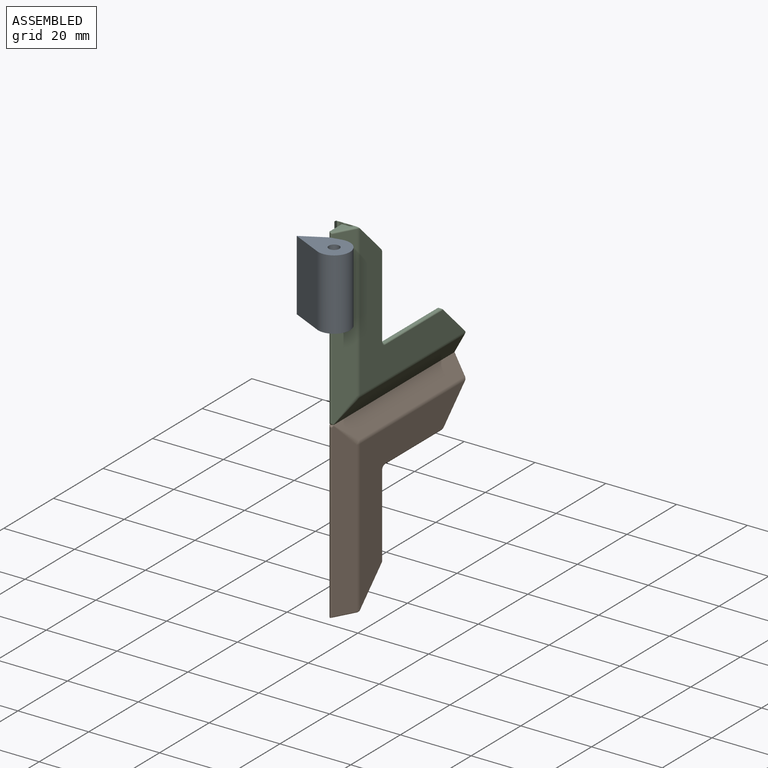
[diagram: assembled view]
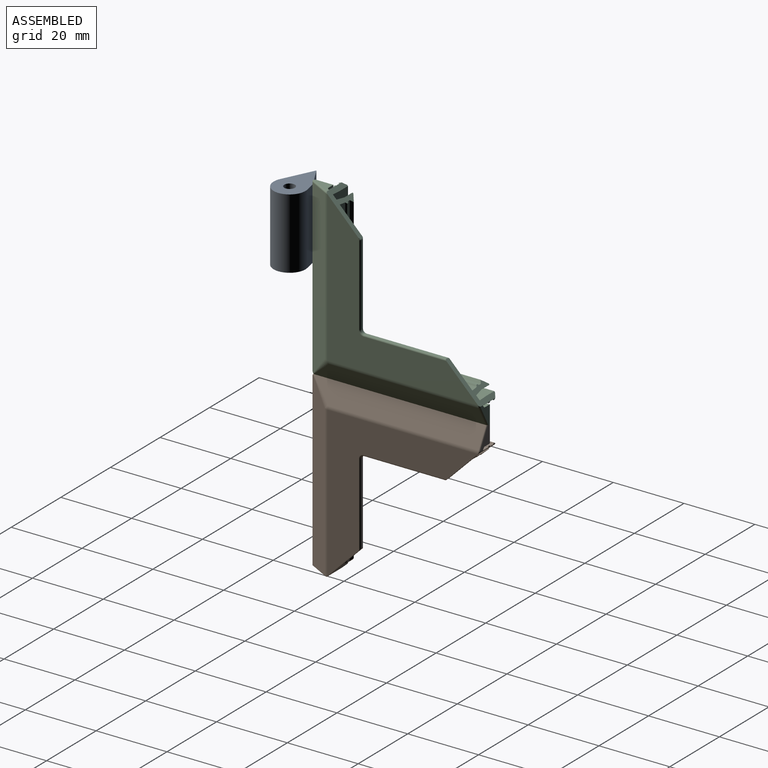
[diagram: assembled view, second angle]
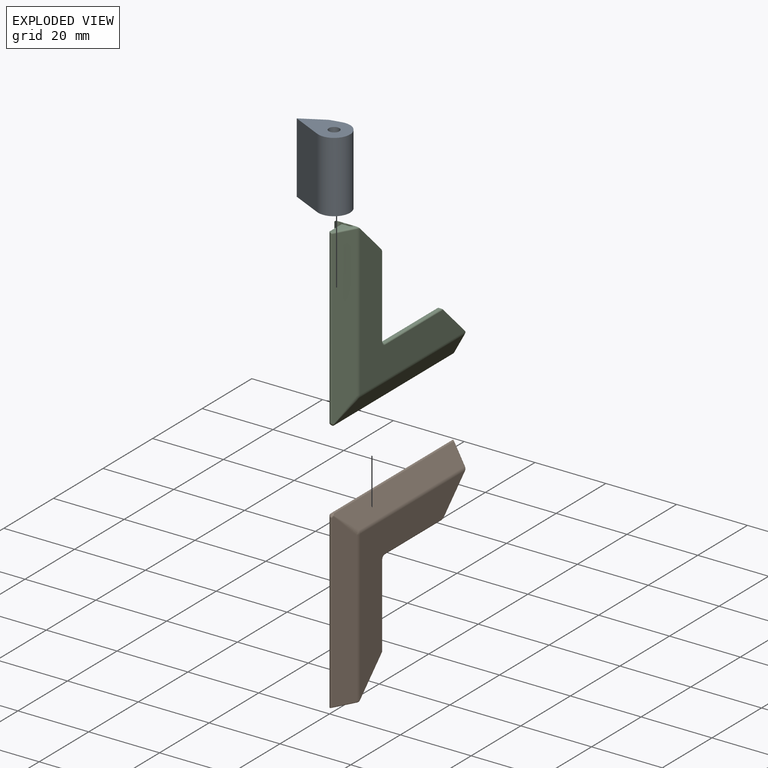
[diagram: exploded view]
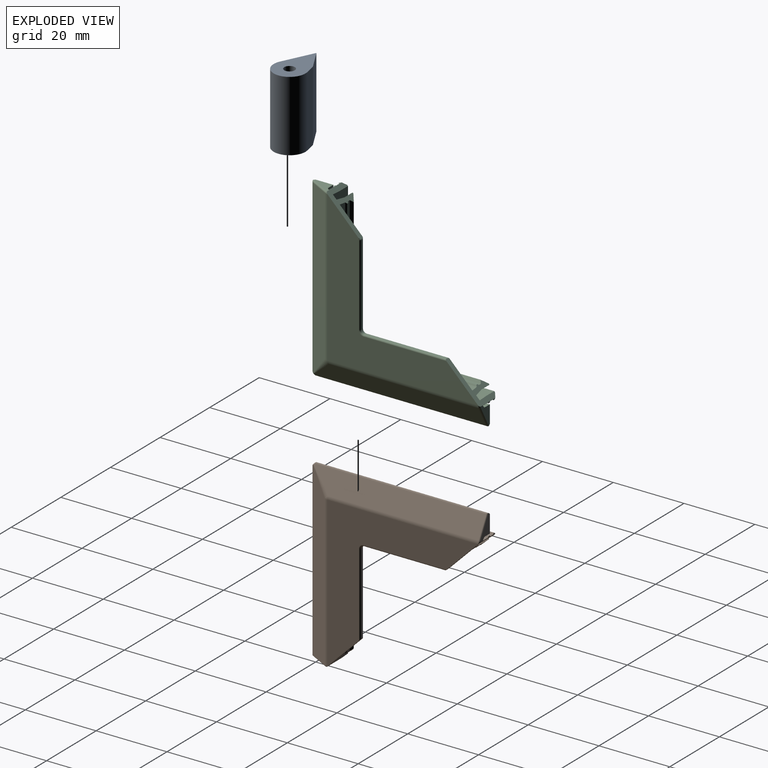
[diagram: exploded view, second angle]
FCSTD DOCUMENT  (FreeCAD 0.22R38127 (Git))
Label: compact zero panels
License: All rights reserved
LicenseURL: http://en.wikipedia.org/wiki/All_rights_reserved
objects: Part::Feature×9, Part::MultiFuse×4, Part::Fillet×3, Part::Cylinder×2, Part::Cut×2, App::Part×2, Sketcher::SketchObject×1, Part::Extrusion×1, Part::Mirroring×1, App::Link×1
note: 23 computed .brp shape members not serialized (recipe doc carries the construction recipe); baked Part::Feature solids carry a one-line shape summary decoded from their .brp

FEATURE [Sketcher::SketchObject] Sketch
  FullyConstrained = false
  sketch-geometry (9):
    g0: LineSegment StartX=-6.31119 StartY=-4.2 StartZ=0 EndX=11.8719 EndY=-4.2 EndZ=0
    g1: LineSegment StartX=4.2 StartY=9.43165 StartZ=0 EndX=4.2 EndY=-8.79378 EndZ=0
    g2: LineSegment StartX=-6.31119 StartY=-4.2 StartZ=0 EndX=-6.31119 EndY=0 EndZ=0
    g3: LineSegment StartX=4.2 StartY=8.44366 StartZ=0 EndX=0 EndY=8.44366 EndZ=0
    g4: LineSegment StartX=0.286898 StartY=-0.569741 StartZ=0 EndX=3.42478 EndY=0.0759296 EndZ=0
    g5: LineSegment StartX=-6.31119 StartY=-4.2 StartZ=0 EndX=2.37888 EndY=-8.38591 EndZ=0
    g6: LineSegment StartX=-6.31119 StartY=-4.2 StartZ=0 EndX=0.286898 EndY=-0.569741 EndZ=0
    g7: ArcOfCircle CenterX=4.33173 CenterY=-4.33173 CenterZ=0 NormalX=0 NormalY=0 NormalZ=1 AngleXU=0 Radius=4.5 StartAngle=4.2635 EndAngle=8.05692
    g8: Circle CenterX=4.33173 CenterY=-4.33173 CenterZ=0 NormalX=0 NormalY=0 NormalZ=1 AngleXU=0 Radius=1.5
  constraints (19):
    c: Horizontal(g0)
    c: Vertical(g1)
    c: Coincident(g2,g0)
    c: PointOnObject(g2,g-1)
    c: Vertical(g2)
    c: PointOnObject(g3,g1)
    c: Horizontal(g3)
    c: Equal(g3,g2)
    c: PointOnObject(g3,g-2)
    c: Coincident(g5,g0)
    c: Distance(g7,g0) = 0.131728
    c: Distance(g7,g1) = 0.131728
    c: Tangent(g7,g5) = -1.5708
    c: Radius(g7) = 4.5
    c: Tangent(g7,g4) = 1.5708
    c: Coincident(g8,g7)
    c: Diameter(g8) = 3
    c: Coincident(g4,g6)
    c: Coincident(g6,g0)
FEATURE [Part::Extrusion] Extrude  label="Hinge door top"
  Base = -> Sketch
  Dir = (0,0,1)
  DirMode = 2
  FaceMakerClass = Part::FaceMakerBullseye
  FaceMakerMode = 3
  LengthFwd = 20
  LengthRev = 0
  Placement = pos=(0,0,-28) rot=(0,0,1;0rad)
  Solid = true
  Symmetric = false
FEATURE [Part::Mirroring] Part__Mirroring  label="Extrude (Mirror #1)"
  Base = (0,0,0)
  Normal = (1,1,0)
  Placement = pos=(0,0,-20) rot=(1,1,0;0rad)
  Source = -> Extrude
FEATURE [Part::Cylinder] Cylinder001
  Angle = 360
  AttacherType = Attacher::AttachEngine3D
  FirstAngle = 0
  Height = 5
  Placement = pos=(4.33173,-4.33173,48) rot=(0,1,0;3.14159rad)
  Radius = 3
  SecondAngle = 0
FEATURE [App::Link] Link  label="Hinge door bottom"
  LinkPlacement = pos=(0,0,28) rot=(0,0,1;0rad)
  LinkedObject = -> Extrude
  Placement = pos=(0,0,28) rot=(0,0,1;0rad)
FEATURE [Part::Cut] Cut002
  Base = -> Link
  Refine = true
  Tool = -> Cylinder001
FEATURE [Part::Cylinder] Cylinder003
  Angle = 360
  AttacherType = Attacher::AttachEngine3D
  FirstAngle = 0
  Height = 5
  Placement = pos=(4.33173,-4.33173,-8) rot=(0,1,0;3.14159rad)
  Radius = 3
  SecondAngle = 0
FEATURE [Part::Cut] Cut003
  Base = -> Extrude
  Refine = true
  Tool = -> Cylinder003
FEATURE [Part::Fillet] Fillet002
  Base = -> Cut002
  EdgeLinks = -> Cut002 [Edge6,Edge7]
  Edges = 2 edges r=0.4: [Edge6,Edge7]
FEATURE [Part::Fillet] Fillet003
  Base = -> Cut003
  EdgeLinks = -> Cut003 [Edge6,Edge13]
  Edges = 2 edges r=0.4: [Edge6,Edge13]
FEATURE [Part::Fillet] Fillet004
  Base = -> Part__Mirroring
  EdgeLinks = -> Part__Mirroring [Edge9,Edge10]
  Edges = 2 edges r=0.4: [Edge9,Edge10]
  Placement = pos=(0,0,56) rot=(0,0,1;0rad)
FEATURE [Part::Feature] Fillet005
  shape: bbox 9.368 x 15.24 x 20 mm, 13 faces (baked)
FEATURE [Part::Feature] Fillet006
  Placement = pos=(-25.5,15.5,-5.8) rot=(0,0,1;0rad)
  shape: bbox 49.79 x 49.79 x 7.69 mm, 97 faces (baked)
FEATURE [App::Part] Part002
  Group = -> [Fillet006]
  Origin = -> Origin002
  Placement = pos=(0,0,0) rot=(-0.57735,0.57735,-0.57735;2.0944rad)
FEATURE [Part::MultiFuse] Fusion005  label="Panel Top Hinge"
  Refine = true
  Shapes = -> [Part002,Fillet005]
FEATURE [Part::Feature] Fillet007
  Placement = pos=(-25.5,15.5,-5.8) rot=(0,0,1;0rad)
  shape: bbox 49.79 x 49.79 x 7.69 mm, 97 faces (baked)
FEATURE [App::Part] Part003
  Group = -> [Fillet007]
  Origin = -> Origin003
  Placement = pos=(0,0,0) rot=(0,1,0;1.5708rad)
FEATURE [Part::MultiFuse] Fusion006  label="Panel Bottom Hinge"
  Placement = pos=(0,0,-181) rot=(0,0,1;0rad)
  Refine = true
  Shapes = -> [Part003,Fillet004]
FEATURE [Part::Feature] Part005
  shape: bbox 49.79 x 4.486 x 49.79 mm, 49 faces (baked)
FEATURE [Part::MultiFuse] Fusion  label="Door Bottom Hinge"
  Placement = pos=(0,0,-181) rot=(0,0,1;0rad)
  Refine = true
  Shapes = -> [Fillet002,Part005]
FEATURE [Part::Feature] Fusion007
  shape: bbox 49.79 x 4.486 x 49.79 mm, 49 faces (baked)
FEATURE [Part::MultiFuse] Fusion008  label="Door Top Hine"
  Refine = true
  Shapes = -> [Fusion007,Fillet003]
FEATURE [Part::Feature] Fillet008  label="Panel Idler Cover"
  Placement = pos=(0,0,-90) rot=(0,0,1;0rad)
  shape: bbox 7.471 x 16.05 x 80.08 mm, 69 faces (baked)
FEATURE [Part::Feature] Part006  label="Door Corner"
  Placement = pos=(-99,0,-181) rot=(0,1,0;1.5708rad)
  shape: bbox 49.79 x 4.486 x 49.79 mm, 49 faces (baked)
FEATURE [Part::Feature] Part007  label="Panel Corner"
  shape: bbox 49.79 x 49.79 x 7.69 mm, 97 faces (baked)
FEATURE [Part::Feature] Defeatured007  label="Door Idler Cover"
  shape: bbox 16.05 x 4.221 x 80.08 mm, 21 faces (baked)
